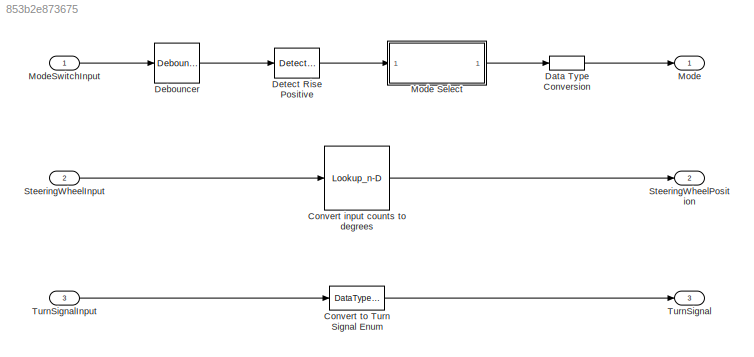
MODEL slx_853b2e873675
KIND model
BLOCK [Lookup_n-D] Convert input counts to degrees
  BreakpointsForDimension1 = [0 1023]
  DataSpecification = Lookup table object
  ExtrapMethod = Clip
  InternalRulePriority = Speed
  LookupTableObject = SteeringWheelAngle_LUT
  NumberOfTableDimensions = 1
  OutDataTypeStr = int16
  Ports = [1, 1]
  RndMeth = Simplest
  Table = [-90 90]
  UseLastTableValue = on
BLOCK [DataTypeConversion] Convert to Turn Signal Enum
  OutDataTypeStr = Enum: en_TurnSignal
  RndMeth = Floor
  SaturateOnIntegerOverflow = off
BLOCK [DataTypeConversion] Data Type Conversion
  OutDataTypeStr = Enum: en_Mode
  RndMeth = Floor
  SaturateOnIntegerOverflow = off
BLOCK [Reference] Debouncer  REF=CustomLibrary/Debouncer
  Ports = [1, 1]
  SourceBlock = CustomLibrary/Debouncer
  SourceProductName = Custom Blocks
  SourceType = SubSystem
BLOCK [Reference] Detect Rise Positive  REF=simulink/Logic and Bit
Operations/Detect Rise
Positive
  Ports = [1, 1]
  SourceBlock = simulink/Logic and Bit\nOperations/Detect Rise\nPositive
  SourceProductBaseCode = SL
  SourceProductName = Simulink
  SourceType = Detect Rise Positive
BLOCK [Outport] Mode
  IconDisplay = Port number
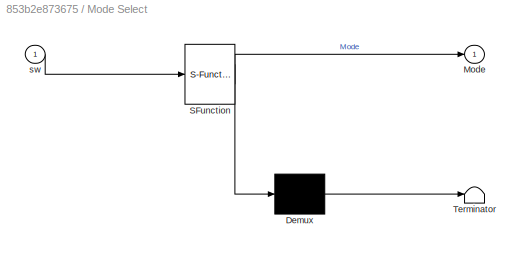
BLOCK [SubSystem] Mode Select
  ErrorFcn = Stateflow.Translate.translate
  PermitHierarchicalResolution = ExplicitOnly
  Ports = [1, 1]
  RequestExecContextInheritance = off
  SFBlockType = Chart
  TreatAsAtomicUnit = on
BLOCK [Demux] Mode Select/ Demux 
  Outputs = 1
  Ports = [1, 1]
BLOCK [S-Function] Mode Select/ SFunction 
  EnableBusSupport = on
  FunctionName = sf_sfun
  Parameters = NoOfModes
  PortCounts = [1 2]
  Ports = [1, 2]
  SFcnIsStateOwnerBlock = off
  SFunctionDeploymentMode = off
  Tag = Stateflow S-Function InputProcessing 3
BLOCK [Terminator] Mode Select/ Terminator 
BLOCK [Outport] Mode Select/Mode
  IconDisplay = Port number
BLOCK [Inport] Mode Select/sw
  IconDisplay = Port number
BLOCK [Inport] ModeSwitchInput
  IconDisplay = Port number
  OutDataTypeStr = boolean
BLOCK [Inport] SteeringWheelInput
  IconDisplay = Port number
  OutDataTypeStr = uint16
  Port = 2
BLOCK [Outport] SteeringWheelPosition
  IconDisplay = Port number
  Port = 2
BLOCK [Outport] TurnSignal
  IconDisplay = Port number
  Port = 3
BLOCK [Inport] TurnSignalInput
  IconDisplay = Port number
  OutDataTypeStr = uint16
  Port = 3
LINE Convert input counts to degrees:1 -> SteeringWheelPosition:1
LINE Convert to Turn Signal Enum:1 -> TurnSignal:1
LINE Data Type Conversion:1 -> Mode:1
LINE Debouncer:1 -> Detect Rise Positive:1
LINE Detect Rise Positive:1 -> Mode Select:1
LINE Mode Select:1 -> Data Type Conversion:1
LINE ModeSwitchInput:1 -> Debouncer:1
LINE SteeringWheelInput:1 -> Convert input counts to degrees:1
LINE TurnSignalInput:1 -> Convert to Turn Signal Enum:1
CHART Mode Select states=2 transitions=4
  STATE_LABEL 'Off\nen:\nMode = 0;'
  STATE_LABEL 'Next_Mode\nen:\nMode = Mode + 1;'
